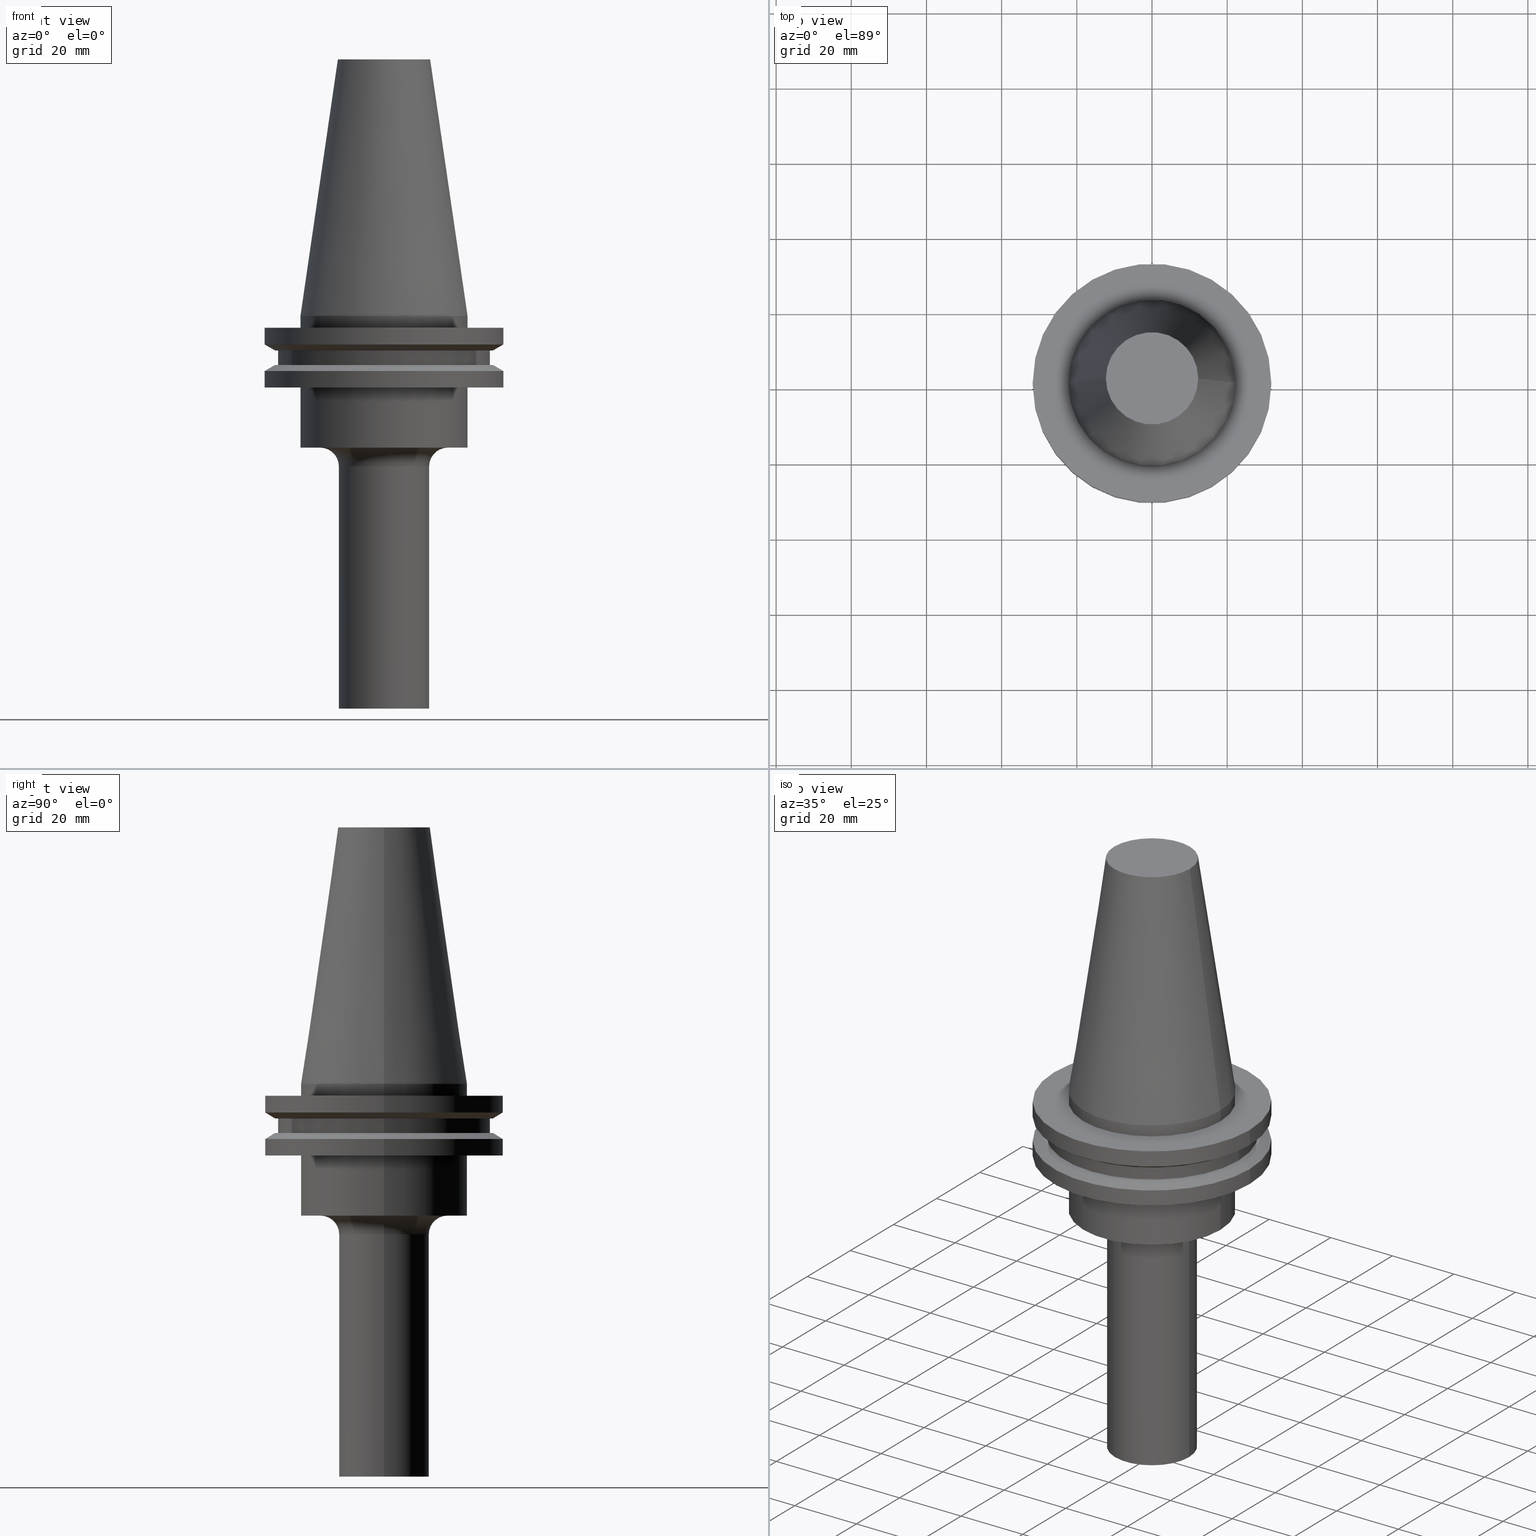
[diagram: canonical four-view strip — front | top / right | iso, engineering-drawing reading convention]
A machine part, canonical four-view strip (front | top / right | iso — engineering-drawing reading convention). The complete STEP part file that produces these views, byte-faithful:
ISO-10303-21;
HEADER;
FILE_DESCRIPTION (( 'STEP AP203' ),
    '1' );
FILE_NAME ('11_326_422.stp',
    '2022-03-07T22:03:20',
    ( '' ),
    ( '' ),
    'SwSTEP 2.0',
    'SolidWorks 2021',
    '' );
FILE_SCHEMA (( 'CONFIG_CONTROL_DESIGN' ));
ENDSEC;

DATA;
#1 = CARTESIAN_POINT ( 'NONE',  ( 22.22500000000000142, 0.000000000000000000, 68.25000000000000000 ) ) ;
#2 = ORIENTED_EDGE ( 'NONE', *, *, #511, .T. ) ;
#3 = AXIS2_PLACEMENT_3D ( 'NONE', #202, #434, #140 ) ;
#4 = CARTESIAN_POINT ( 'NONE',  ( -28.97919780457008088, 0.000000000000000000, -13.05499999999999794 ) ) ;
#5 = VECTOR ( 'NONE', #742, 1000.000000000000000 ) ;
#6 = CIRCLE ( 'NONE', #630, 17.00000000000000000 ) ;
#7 = ORIENTED_EDGE ( 'NONE', *, *, #646, .F. ) ;
#8 = DIRECTION ( 'NONE',  ( -1.000000000000000000, 0.000000000000000000, -0.000000000000000000 ) ) ;
#9 = DIRECTION ( 'NONE',  ( 1.000000000000000000, 0.000000000000000000, 0.000000000000000000 ) ) ;
#10 = ORIENTED_EDGE ( 'NONE', *, *, #542, .F. ) ;
#11 = ADVANCED_FACE ( 'NONE', ( #47 ), #728, .F. ) ;
#12 = CARTESIAN_POINT ( 'NONE',  ( 12.00000000000000000, 0.000000000000000000, -40.04999999999999716 ) ) ;
#13 = CYLINDRICAL_SURFACE ( 'NONE', #759, 12.00000000000000000 ) ;
#14 = EDGE_LOOP ( 'NONE', ( #296, #497, #472, #23 ) ) ;
#15 = CARTESIAN_POINT ( 'NONE',  ( 0.000000000000000000, 0.000000000000000000, 68.25000000000000000 ) ) ;
#16 = CIRCLE ( 'NONE', #144, 31.75000000000000000 ) ;
#17 = CARTESIAN_POINT ( 'NONE',  ( -31.75000000000000000, 3.888253587292846476E-15, 68.25000000000000000 ) ) ;
#18 = AXIS2_PLACEMENT_3D ( 'NONE', #373, #610, #722 ) ;
#19 = VERTEX_POINT ( 'NONE', #462 ) ;
#20 = CYLINDRICAL_SURFACE ( 'NONE', #481, 31.75000000000000000 ) ;
#21 = CARTESIAN_POINT ( 'NONE',  ( 0.000000000000000000, 28.17999999999999972, -13.05499999999999794 ) ) ;
#22 = EDGE_CURVE ( 'NONE', #432, #85, #226, .T. ) ;
#23 = ORIENTED_EDGE ( 'NONE', *, *, #128, .F. ) ;
#24 = DIRECTION ( 'NONE',  ( 1.000000000000000000, 0.000000000000000000, 0.000000000000000000 ) ) ;
#25 = CC_DESIGN_PERSON_AND_ORGANIZATION_ASSIGNMENT ( #116, #52, ( #57 ) ) ;
#26 = VERTEX_POINT ( 'NONE', #114 ) ;
#27 = LINE ( 'NONE', #623, #441 ) ;
#28 = CLOSED_SHELL ( 'NONE', ( #11, #212, #624, #609, #753, #613, #731, #582, #311, #187, #115, #589, #637, #289, #775, #248, #235, #154, #46, #120, #58, #655, #199, #464, #403, #496, #70 ) ) ;
#29 = CIRCLE ( 'NONE', #404, 31.74999999999999289 ) ;
#30 = ORIENTED_EDGE ( 'NONE', *, *, #669, .F. ) ;
#31 = CARTESIAN_POINT ( 'NONE',  ( -12.00000000000000000, 1.469576158976823947E-15, -104.5000000000000000 ) ) ;
#32 = DIRECTION ( 'NONE',  ( 1.000000000000000000, 0.000000000000000000, 0.000000000000000000 ) ) ;
#33 = ORIENTED_EDGE ( 'NONE', *, *, #283, .F. ) ;
#34 = DIRECTION ( 'NONE',  ( -0.000000000000000000, -0.000000000000000000, 1.000000000000000000 ) ) ;
#35 = EDGE_CURVE ( 'NONE', #186, #612, #143, .T. ) ;
#36 = DIRECTION ( 'NONE',  ( 1.000000000000000000, 0.000000000000000000, 0.000000000000000000 ) ) ;
#37 = DIRECTION ( 'NONE',  ( 1.000000000000000000, 0.000000000000000000, 0.000000000000000000 ) ) ;
#38 = LINE ( 'NONE', #285, #692 ) ;
#39 = ORIENTED_EDGE ( 'NONE', *, *, #371, .T. ) ;
#40 = AXIS2_PLACEMENT_3D ( 'NONE', #320, #561, #24 ) ;
#41 = AXIS2_PLACEMENT_3D ( 'NONE', #620, #246, #368 ) ;
#42 = PERSON ( 'UNSPECIFIED', 'UNSPECIFIED', 'UNSPECIFIED', ('UNSPECIFIED'), ('UNSPECIFIED'), ('UNSPECIFIED') ) ;
#43 = EDGE_LOOP ( 'NONE', ( #274, #622 ) ) ;
#44 = COORDINATED_UNIVERSAL_TIME_OFFSET ( 6, 0, .BEHIND. ) ;
#45 = CARTESIAN_POINT ( 'NONE',  ( 0.000000000000000000, 0.000000000000000000, 68.25000000000000000 ) ) ;
#46 = ADVANCED_FACE ( 'NONE', ( #459 ), #54, .T. ) ;
#47 = FACE_OUTER_BOUND ( 'NONE', #305, .T. ) ;
#48 = CALENDAR_DATE ( 2022, 7, 3 ) ;
#49 = LINE ( 'NONE', #117, #107 ) ;
#50 = ORIENTED_EDGE ( 'NONE', *, *, #358, .T. ) ;
#51 = CC_DESIGN_DATE_AND_TIME_ASSIGNMENT ( #349, #584, ( #761 ) ) ;
#52 = PERSON_AND_ORGANIZATION_ROLE ( 'creator' ) ;
#53 = LINE ( 'NONE', #176, #405 ) ;
#54 = CYLINDRICAL_SURFACE ( 'NONE', #130, 28.17999999999999972 ) ;
#55 = CIRCLE ( 'NONE', #220, 31.75000000000000000 ) ;
#56 = APPROVAL_DATE_TIME ( #173, #362 ) ;
#57 = PRODUCT_DEFINITION_FORMATION_WITH_SPECIFIED_SOURCE ( 'ANY', '', #198, .NOT_KNOWN. ) ;
#58 = ADVANCED_FACE ( 'NONE', ( #291 ), #591, .T. ) ;
#59 = CC_DESIGN_SECURITY_CLASSIFICATION ( #761, ( #57 ) ) ;
#60 = CYLINDRICAL_SURFACE ( 'NONE', #554, 22.22500000000000142 ) ;
#61 = FACE_BOUND ( 'NONE', #482, .T. ) ;
#62 = ORIENTED_EDGE ( 'NONE', *, *, #222, .F. ) ;
#63 = DATE_AND_TIME ( #640, #720 ) ;
#64 = CARTESIAN_POINT ( 'NONE',  ( 0.000000000000000000, 0.000000000000000000, -104.5000000000000000 ) ) ;
#65 = ORIENTED_EDGE ( 'NONE', *, *, #104, .T. ) ;
#66 = DIRECTION ( 'NONE',  ( -0.000000000000000000, -0.000000000000000000, 1.000000000000000000 ) ) ;
#67 = ORIENTED_EDGE ( 'NONE', *, *, #95, .F. ) ;
#68 = DIRECTION ( 'NONE',  ( 1.000000000000000000, 0.000000000000000000, 0.000000000000000000 ) ) ;
#69 = ORGANIZATION ( 'UNSPECIFIED', 'UNSPECIFIED', '' ) ;
#70 = ADVANCED_FACE ( 'NONE', ( #773 ), #757, .F. ) ;
#71 = ORIENTED_EDGE ( 'NONE', *, *, #706, .T. ) ;
#72 = DIRECTION ( 'NONE',  ( 1.000000000000000000, 0.000000000000000000, 0.000000000000000000 ) ) ;
#73 = DIRECTION ( 'NONE',  ( -1.000000000000000000, 0.000000000000000000, -0.000000000000000000 ) ) ;
#74 = EDGE_LOOP ( 'NONE', ( #71, #65, #435, #384 ) ) ;
#75 = EDGE_CURVE ( 'NONE', #26, #679, #166, .T. ) ;
#76 = DIRECTION ( 'NONE',  ( 1.000000000000000000, 0.000000000000000000, 0.000000000000000000 ) ) ;
#77 = LINE ( 'NONE', #17, #281 ) ;
#78 = EDGE_LOOP ( 'NONE', ( #388, #493, #736, #271 ) ) ;
#79 = CARTESIAN_POINT ( 'NONE',  ( 0.000000000000000000, 0.000000000000000000, -3.174999999999997158 ) ) ;
#80 = CIRCLE ( 'NONE', #181, 28.17999999999999972 ) ;
#81 = EDGE_CURVE ( 'NONE', #421, #244, #80, .T. ) ;
#82 = AXIS2_PLACEMENT_3D ( 'NONE', #219, #165, #686 ) ;
#83 = CARTESIAN_POINT ( 'NONE',  ( 0.000000000000000000, 0.000000000000000000, -3.174999999999997158 ) ) ;
#84 = CC_DESIGN_APPROVAL ( #468, ( #57 ) ) ;
#85 = VERTEX_POINT ( 'NONE', #136 ) ;
#86 = DIRECTION ( 'NONE',  ( 1.000000000000000000, 0.000000000000000000, 0.000000000000000000 ) ) ;
#87 = ORIENTED_EDGE ( 'NONE', *, *, #552, .T. ) ;
#88 = DIRECTION ( 'NONE',  ( -0.000000000000000000, -0.000000000000000000, 1.000000000000000000 ) ) ;
#89 = VERTEX_POINT ( 'NONE', #672 ) ;
#90 = DIRECTION ( 'NONE',  ( 1.000000000000000000, 0.000000000000000000, 0.000000000000000000 ) ) ;
#91 = DIRECTION ( 'NONE',  ( 1.000000000000000000, 0.000000000000000000, 0.000000000000000000 ) ) ;
#92 = AXIS2_PLACEMENT_3D ( 'NONE', #64, #185, #652 ) ;
#93 = VECTOR ( 'NONE', #201, 1000.000000000000000 ) ;
#94 = ORIENTED_EDGE ( 'NONE', *, *, #500, .T. ) ;
#95 = EDGE_CURVE ( 'NONE', #432, #566, #207, .T. ) ;
#96 = DIRECTION ( 'NONE',  ( -0.000000000000000000, -0.000000000000000000, 1.000000000000000000 ) ) ;
#97 = CARTESIAN_POINT ( 'NONE',  ( 31.75000000000000000, 0.000000000000000000, 68.25000000000000000 ) ) ;
#98 = ORIENTED_EDGE ( 'NONE', *, *, #104, .F. ) ;
#99 = DIRECTION ( 'NONE',  ( -0.000000000000000000, -0.000000000000000000, 1.000000000000000000 ) ) ;
#100 = CARTESIAN_POINT ( 'NONE',  ( -31.75000000000000000, 3.888253587292846476E-15, -7.605276606597335842 ) ) ;
#101 = EDGE_LOOP ( 'NONE', ( #7, #170 ) ) ;
#102 = COORDINATED_UNIVERSAL_TIME_OFFSET ( 6, 0, .BEHIND. ) ;
#103 = DIRECTION ( 'NONE',  ( 0.000000000000000000, 0.000000000000000000, -1.000000000000000000 ) ) ;
#104 = EDGE_CURVE ( 'NONE', #182, #19, #77, .T. ) ;
#105 = AXIS2_PLACEMENT_3D ( 'NONE', #258, #735, #615 ) ;
#106 = DIRECTION ( 'NONE',  ( 1.000000000000000000, 0.000000000000000000, 0.000000000000000000 ) ) ;
#107 = VECTOR ( 'NONE', #598, 1000.000000000000000 ) ;
#108 = AXIS2_PLACEMENT_3D ( 'NONE', #156, #626, #218 ) ;
#109 = DATE_TIME_ROLE ( 'creation_date' ) ;
#110 = DIRECTION ( 'NONE',  ( -0.000000000000000000, -0.000000000000000000, 1.000000000000000000 ) ) ;
#111 = CC_DESIGN_PERSON_AND_ORGANIZATION_ASSIGNMENT ( #460, #267, ( #198 ) ) ;
#112 = CARTESIAN_POINT ( 'NONE',  ( 0.000000000000000000, 0.000000000000000000, -40.04999999999999716 ) ) ;
#113 = LINE ( 'NONE', #420, #327 ) ;
#114 = CARTESIAN_POINT ( 'NONE',  ( 12.00000000000000000, 0.000000000000000000, -104.5000000000000000 ) ) ;
#115 = ADVANCED_FACE ( 'NONE', ( #309 ), #341, .T. ) ;
#116 = PERSON_AND_ORGANIZATION ( #42, #69 ) ;
#117 = CARTESIAN_POINT ( 'NONE',  ( -31.75000000000000000, 3.888253587292846476E-15, 68.25000000000000000 ) ) ;
#118 = DIRECTION ( 'NONE',  ( -0.000000000000000000, -0.000000000000000000, 1.000000000000000000 ) ) ;
#119 = AXIS2_PLACEMENT_3D ( 'NONE', #83, #133, #205 ) ;
#120 = ADVANCED_FACE ( 'NONE', ( #383, #374 ), #607, .F. ) ;
#121 = CALENDAR_DATE ( 2022, 7, 3 ) ;
#122 = CIRCLE ( 'NONE', #580, 31.74999999999999289 ) ;
#123 = DIRECTION ( 'NONE',  ( 0.000000000000000000, -0.000000000000000000, 1.000000000000000000 ) ) ;
#124 = ORIENTED_EDGE ( 'NONE', *, *, #706, .F. ) ;
#125 = CYLINDRICAL_SURFACE ( 'NONE', #470, 12.00000000000000000 ) ;
#126 = ORIENTED_EDGE ( 'NONE', *, *, #682, .T. ) ;
#127 = CARTESIAN_POINT ( 'NONE',  ( 0.000000000000000000, 0.000000000000000000, 68.25000000000000000 ) ) ;
#128 = EDGE_CURVE ( 'NONE', #238, #679, #440, .T. ) ;
#129 = ORIENTED_EDGE ( 'NONE', *, *, #485, .T. ) ;
#130 = AXIS2_PLACEMENT_3D ( 'NONE', #696, #407, #577 ) ;
#131 = AXIS2_PLACEMENT_3D ( 'NONE', #153, #225, #390 ) ;
#132 = CARTESIAN_POINT ( 'NONE',  ( 0.000000000000000000, 0.000000000000000000, 68.25000000000000000 ) ) ;
#133 = DIRECTION ( 'NONE',  ( -0.000000000000000000, -0.000000000000000000, 1.000000000000000000 ) ) ;
#134 = ORIENTED_EDGE ( 'NONE', *, *, #452, .F. ) ;
#135 = LINE ( 'NONE', #734, #93 ) ;
#136 = CARTESIAN_POINT ( 'NONE',  ( 31.75000000000000000, 0.000000000000000000, -14.65472339340266572 ) ) ;
#137 = EDGE_LOOP ( 'NONE', ( #538, #335, #666, #516 ) ) ;
#138 = EDGE_CURVE ( 'NONE', #254, #397, #718, .T. ) ;
#139 = DIRECTION ( 'NONE',  ( 1.000000000000000000, 0.000000000000000000, 0.000000000000000000 ) ) ;
#140 = DIRECTION ( 'NONE',  ( -1.000000000000000000, 0.000000000000000000, 0.000000000000000000 ) ) ;
#141 = ORIENTED_EDGE ( 'NONE', *, *, #474, .T. ) ;
#142 = FACE_OUTER_BOUND ( 'NONE', #74, .T. ) ;
#143 = CIRCLE ( 'NONE', #315, 12.27178102086201150 ) ;
#144 = AXIS2_PLACEMENT_3D ( 'NONE', #213, #273, #632 ) ;
#145 = CARTESIAN_POINT ( 'NONE',  ( 0.000000000000000000, 0.000000000000000000, 0.000000000000000000 ) ) ;
#146 = AXIS2_PLACEMENT_3D ( 'NONE', #132, #256, #662 ) ;
#147 = CC_DESIGN_APPROVAL ( #259, ( #761 ) ) ;
#148 = EDGE_LOOP ( 'NONE', ( #409, #633, #765, #763 ) ) ;
#149 = DIRECTION ( 'NONE',  ( 0.000000000000000000, 0.000000000000000000, 1.000000000000000000 ) ) ;
#150 = DIRECTION ( 'NONE',  ( 1.000000000000000000, 0.000000000000000000, 0.000000000000000000 ) ) ;
#151 = VERTEX_POINT ( 'NONE', #730 ) ;
#152 = DIRECTION ( 'NONE',  ( 1.000000000000000000, 0.000000000000000000, 0.000000000000000000 ) ) ;
#153 = CARTESIAN_POINT ( 'NONE',  ( 0.000000000000000000, 0.000000000000000000, 68.25000000000000000 ) ) ;
#154 = ADVANCED_FACE ( 'NONE', ( #558, #549 ), #438, .F. ) ;
#155 = ORIENTED_EDGE ( 'NONE', *, *, #740, .F. ) ;
#156 = CARTESIAN_POINT ( 'NONE',  ( 0.000000000000000000, 0.000000000000000000, -9.205000000000005400 ) ) ;
#157 = LINE ( 'NONE', #97, #703 ) ;
#158 = AXIS2_PLACEMENT_3D ( 'NONE', #473, #359, #476 ) ;
#159 = VERTEX_POINT ( 'NONE', #499 ) ;
#160 = FACE_BOUND ( 'NONE', #223, .T. ) ;
#161 = FACE_OUTER_BOUND ( 'NONE', #758, .T. ) ;
#162 = EDGE_LOOP ( 'NONE', ( #501, #310 ) ) ;
#163 = EDGE_CURVE ( 'NONE', #612, #186, #316, .T. ) ;
#164 = DIRECTION ( 'NONE',  ( -0.000000000000000000, -0.000000000000000000, 1.000000000000000000 ) ) ;
#165 = DIRECTION ( 'NONE',  ( -0.000000000000000000, -0.000000000000000000, 1.000000000000000000 ) ) ;
#166 = LINE ( 'NONE', #583, #565 ) ;
#167 = EDGE_CURVE ( 'NONE', #367, #326, #579, .T. ) ;
#168 = DIRECTION ( 'NONE',  ( -0.000000000000000000, -0.000000000000000000, 1.000000000000000000 ) ) ;
#169 = CIRCLE ( 'NONE', #663, 28.17999999999999972 ) ;
#170 = ORIENTED_EDGE ( 'NONE', *, *, #511, .F. ) ;
#171 = AXIS2_PLACEMENT_3D ( 'NONE', #376, #204, #494 ) ;
#172 = APPROVAL_PERSON_ORGANIZATION ( #533, #259, #179 ) ;
#173 = DATE_AND_TIME ( #121, #292 ) ;
#174 = CARTESIAN_POINT ( 'NONE',  ( 0.000000000000000000, 0.000000000000000000, -3.174999999999997158 ) ) ;
#175 = ORIENTED_EDGE ( 'NONE', *, *, #426, .T. ) ;
#176 = CARTESIAN_POINT ( 'NONE',  ( -28.17999999999999972, 3.451054679997241634E-15, 68.25000000000000000 ) ) ;
#177 = EDGE_CURVE ( 'NONE', #527, #372, #769, .T. ) ;
#178 = DIRECTION ( 'NONE',  ( 0.000000000000000000, 0.000000000000000000, -1.000000000000000000 ) ) ;
#179 = APPROVAL_ROLE ( '' ) ;
#180 = DIRECTION ( 'NONE',  ( 1.000000000000000000, 0.000000000000000000, 0.000000000000000000 ) ) ;
#181 = AXIS2_PLACEMENT_3D ( 'NONE', #253, #611, #738 ) ;
#182 = VERTEX_POINT ( 'NONE', #265 ) ;
#183 = APPROVAL_STATUS ( 'not_yet_approved' ) ;
#184 = AXIS2_PLACEMENT_3D ( 'NONE', #15, #483, #139 ) ;
#185 = DIRECTION ( 'NONE',  ( -0.000000000000000000, -0.000000000000000000, 1.000000000000000000 ) ) ;
#186 = VERTEX_POINT ( 'NONE', #197 ) ;
#187 = ADVANCED_FACE ( 'NONE', ( #503 ), #480, .T. ) ;
#188 = FACE_OUTER_BOUND ( 'NONE', #137, .T. ) ;
#189 = ORIENTED_EDGE ( 'NONE', *, *, #299, .T. ) ;
#190 = DIRECTION ( 'NONE',  ( -0.000000000000000000, -0.000000000000000000, 1.000000000000000000 ) ) ;
#191 = EDGE_CURVE ( 'NONE', #326, #367, #641, .T. ) ;
#192 = FACE_OUTER_BOUND ( 'NONE', #739, .T. ) ;
#193 = EDGE_LOOP ( 'NONE', ( #10, #687, #50, #608 ) ) ;
#194 = VECTOR ( 'NONE', #689, 999.9999999999998863 ) ;
#195 = FACE_OUTER_BOUND ( 'NONE', #625, .T. ) ;
#196 = AXIS2_PLACEMENT_3D ( 'NONE', #308, #737, #548 ) ;
#197 = CARTESIAN_POINT ( 'NONE',  ( 12.27178102086201150, 2.112318622904291439E-15, 68.25000000000000000 ) ) ;
#198 = PRODUCT ( '11_326_422', '11_326_422', '', ( #279 ) ) ;
#199 = ADVANCED_FACE ( 'NONE', ( #61, #192 ), #425, .F. ) ;
#200 = ORIENTED_EDGE ( 'NONE', *, *, #576, .T. ) ;
#201 = DIRECTION ( 'NONE',  ( -0.8660254037844389297, 1.060575238724907285E-16, 0.4999999999999995004 ) ) ;
#202 = CARTESIAN_POINT ( 'NONE',  ( 0.000000000000000000, 0.000000000000000000, 0.000000000000000000 ) ) ;
#203 = ORIENTED_EDGE ( 'NONE', *, *, #163, .T. ) ;
#204 = DIRECTION ( 'NONE',  ( 0.000000000000000000, -0.000000000000000000, 1.000000000000000000 ) ) ;
#205 = DIRECTION ( 'NONE',  ( 1.000000000000000000, 0.000000000000000000, 0.000000000000000000 ) ) ;
#206 = ORIENTED_EDGE ( 'NONE', *, *, #167, .T. ) ;
#207 = CIRCLE ( 'NONE', #616, 28.97919780457008088 ) ;
#208 = DIRECTION ( 'NONE',  ( 1.000000000000000000, 0.000000000000000000, 0.000000000000000000 ) ) ;
#209 = CARTESIAN_POINT ( 'NONE',  ( 0.000000000000000000, 0.000000000000000000, -35.04999999999999716 ) ) ;
#210 = CIRCLE ( 'NONE', #41, 17.00000000000000000 ) ;
#211 = ORIENTED_EDGE ( 'NONE', *, *, #138, .F. ) ;
#212 = ADVANCED_FACE ( 'NONE', ( #431 ), #13, .T. ) ;
#213 = CARTESIAN_POINT ( 'NONE',  ( 0.000000000000000000, 0.000000000000000000, -7.605276606597335842 ) ) ;
#214 = EDGE_LOOP ( 'NONE', ( #535, #314 ) ) ;
#215 = CARTESIAN_POINT ( 'NONE',  ( 28.17999999999999972, 0.000000000000000000, -9.204999999999991189 ) ) ;
#216 = DIRECTION ( 'NONE',  ( 0.000000000000000000, 0.000000000000000000, -1.000000000000000000 ) ) ;
#217 = ORIENTED_EDGE ( 'NONE', *, *, #22, .T. ) ;
#218 = DIRECTION ( 'NONE',  ( 1.000000000000000000, 0.000000000000000000, 0.000000000000000000 ) ) ;
#219 = CARTESIAN_POINT ( 'NONE',  ( 0.000000000000000000, 0.000000000000000000, -9.204999999999991189 ) ) ;
#220 = AXIS2_PLACEMENT_3D ( 'NONE', #656, #227, #401 ) ;
#221 = CONICAL_SURFACE ( 'NONE', #444, 31.75000000000000000, 1.047197551196597853 ) ;
#222 = EDGE_CURVE ( 'NONE', #612, #367, #756, .T. ) ;
#223 = EDGE_LOOP ( 'NONE', ( #562, #418 ) ) ;
#224 = CARTESIAN_POINT ( 'NONE',  ( 31.75000000000000000, 0.000000000000000000, -3.174999999999997158 ) ) ;
#225 = DIRECTION ( 'NONE',  ( -0.000000000000000000, -0.000000000000000000, 1.000000000000000000 ) ) ;
#226 = LINE ( 'NONE', #588, #230 ) ;
#227 = DIRECTION ( 'NONE',  ( -0.000000000000000000, -0.000000000000000000, 1.000000000000000000 ) ) ;
#228 = ORIENTED_EDGE ( 'NONE', *, *, #371, .F. ) ;
#229 = DIRECTION ( 'NONE',  ( 1.000000000000000000, 0.000000000000000000, 0.000000000000000000 ) ) ;
#230 = VECTOR ( 'NONE', #702, 1000.000000000000000 ) ;
#231 = CIRCLE ( 'NONE', #82, 28.17999999999999972 ) ;
#232 = ORIENTED_EDGE ( 'NONE', *, *, #95, .T. ) ;
#233 = CIRCLE ( 'NONE', #555, 28.17999999999999972 ) ;
#234 = CARTESIAN_POINT ( 'NONE',  ( 0.000000000000000000, 0.000000000000000000, 68.25000000000000000 ) ) ;
#235 = ADVANCED_FACE ( 'NONE', ( #161 ), #743, .T. ) ;
#236 = ORIENTED_EDGE ( 'NONE', *, *, #690, .T. ) ;
#237 = DIRECTION ( 'NONE',  ( -0.000000000000000000, -0.000000000000000000, 1.000000000000000000 ) ) ;
#238 = VERTEX_POINT ( 'NONE', #762 ) ;
#239 = APPROVAL_DATE_TIME ( #63, #468 ) ;
#240 = CARTESIAN_POINT ( 'NONE',  ( 28.97919780457007732, 0.000000000000000000, -9.205000000000005400 ) ) ;
#241 = AXIS2_PLACEMENT_3D ( 'NONE', #377, #495, #250 ) ;
#242 = EDGE_CURVE ( 'NONE', #260, #715, #231, .T. ) ;
#243 = AXIS2_PLACEMENT_3D ( 'NONE', #355, #594, #725 ) ;
#244 = VERTEX_POINT ( 'NONE', #635 ) ;
#245 = CIRCLE ( 'NONE', #342, 12.00000000000000000 ) ;
#246 = DIRECTION ( 'NONE',  ( -0.000000000000000000, -0.000000000000000000, 1.000000000000000000 ) ) ;
#247 = VERTEX_POINT ( 'NONE', #100 ) ;
#248 = ADVANCED_FACE ( 'NONE', ( #337 ), #451, .T. ) ;
#249 = CARTESIAN_POINT ( 'NONE',  ( 31.75000000000000000, 0.000000000000000000, -7.605276606597335842 ) ) ;
#250 = DIRECTION ( 'NONE',  ( 1.000000000000000000, 0.000000000000000000, 0.000000000000000000 ) ) ;
#251 = ORIENTED_EDGE ( 'NONE', *, *, #191, .T. ) ;
#252 = CARTESIAN_POINT ( 'NONE',  ( 0.000000000000000000, 0.000000000000000000, -40.04999999999999716 ) ) ;
#253 = CARTESIAN_POINT ( 'NONE',  ( 0.000000000000000000, 0.000000000000000000, -13.05499999999999794 ) ) ;
#254 = VERTEX_POINT ( 'NONE', #581 ) ;
#255 = AXIS2_PLACEMENT_3D ( 'NONE', #676, #545, #9 ) ;
#256 = DIRECTION ( 'NONE',  ( -0.000000000000000000, -0.000000000000000000, 1.000000000000000000 ) ) ;
#257 = CIRCLE ( 'NONE', #428, 31.75000000000000000 ) ;
#258 = CARTESIAN_POINT ( 'NONE',  ( 0.000000000000000000, 0.000000000000000000, -40.04999999999999716 ) ) ;
#259 = APPROVAL ( #522, 'UNSPECIFIED' ) ;
#260 = VERTEX_POINT ( 'NONE', #508 ) ;
#261 = CARTESIAN_POINT ( 'NONE',  ( -12.27178102086201150, 0.000000000000000000, 68.25000000000000000 ) ) ;
#262 = DIRECTION ( 'NONE',  ( 0.000000000000000000, 0.000000000000000000, -1.000000000000000000 ) ) ;
#263 = ORIENTED_EDGE ( 'NONE', *, *, #277, .T. ) ;
#264 = CARTESIAN_POINT ( 'NONE',  ( 0.000000000000000000, 0.000000000000000000, -13.05499999999999794 ) ) ;
#265 = CARTESIAN_POINT ( 'NONE',  ( -31.74999999999999289, 3.888253587292845687E-15, -19.04999999999999716 ) ) ;
#266 = EDGE_LOOP ( 'NONE', ( #175, #189, #429, #726 ) ) ;
#267 = PERSON_AND_ORGANIZATION_ROLE ( 'design_owner' ) ;
#268 = CIRCLE ( 'NONE', #505, 22.22500000000000142 ) ;
#269 = APPROVAL_PERSON_ORGANIZATION ( #578, #362, #410 ) ;
#270 = CARTESIAN_POINT ( 'NONE',  ( -22.22500000000000142, 0.000000000000000000, 0.000000000000000000 ) ) ;
#271 = ORIENTED_EDGE ( 'NONE', *, *, #382, .F. ) ;
#272 = CARTESIAN_POINT ( 'NONE',  ( 0.000000000000000000, 0.000000000000000000, -19.04999999999999716 ) ) ;
#273 = DIRECTION ( 'NONE',  ( -0.000000000000000000, -0.000000000000000000, 1.000000000000000000 ) ) ;
#274 = ORIENTED_EDGE ( 'NONE', *, *, #426, .F. ) ;
#275 = CARTESIAN_POINT ( 'NONE',  ( -22.22500000000000142, 2.721777511104992849E-15, 68.25000000000000000 ) ) ;
#276 = FACE_OUTER_BOUND ( 'NONE', #78, .T. ) ;
#277 = EDGE_CURVE ( 'NONE', #330, #89, #268, .T. ) ;
#278 = DIRECTION ( 'NONE',  ( 1.000000000000000000, 0.000000000000000000, 0.000000000000000000 ) ) ;
#279 = MECHANICAL_CONTEXT ( 'NONE', #334, 'mechanical' ) ;
#280 = DIRECTION ( 'NONE',  ( -0.000000000000000000, -0.000000000000000000, 1.000000000000000000 ) ) ;
#281 = VECTOR ( 'NONE', #313, 1000.000000000000000 ) ;
#282 = AXIS2_PLACEMENT_3D ( 'NONE', #287, #110, #345 ) ;
#283 = EDGE_CURVE ( 'NONE', #247, #636, #16, .T. ) ;
#284 = DIRECTION ( 'NONE',  ( -0.000000000000000000, -0.000000000000000000, 1.000000000000000000 ) ) ;
#285 = CARTESIAN_POINT ( 'NONE',  ( -12.00000000000000000, 1.469576158976823947E-15, 0.000000000000000000 ) ) ;
#286 = ORIENTED_EDGE ( 'NONE', *, *, #485, .F. ) ;
#287 = CARTESIAN_POINT ( 'NONE',  ( 0.000000000000000000, 0.000000000000000000, -9.205000000000005400 ) ) ;
#288 = CARTESIAN_POINT ( 'NONE',  ( 0.000000000000000000, 0.000000000000000000, 68.25000000000000000 ) ) ;
#289 = ADVANCED_FACE ( 'NONE', ( #683 ), #627, .T. ) ;
#290 = DIRECTION ( 'NONE',  ( -0.000000000000000000, -0.000000000000000000, 1.000000000000000000 ) ) ;
#291 = FACE_OUTER_BOUND ( 'NONE', #644, .T. ) ;
#292 = LOCAL_TIME ( 16, 3, 20.00000000000000000, #777 ) ;
#293 = PERSON_AND_ORGANIZATION ( #42, #69 ) ;
#294 = PLANE ( 'NONE',  #541 ) ;
#295 = DIRECTION ( 'NONE',  ( 1.000000000000000000, 0.000000000000000000, 0.000000000000000000 ) ) ;
#296 = ORIENTED_EDGE ( 'NONE', *, *, #299, .F. ) ;
#297 = CALENDAR_DATE ( 2022, 7, 3 ) ;
#298 = CARTESIAN_POINT ( 'NONE',  ( 0.000000000000000000, 0.000000000000000000, -14.65472339340266572 ) ) ;
#299 = EDGE_CURVE ( 'NONE', #776, #238, #38, .T. ) ;
#300 = ORIENTED_EDGE ( 'NONE', *, *, #634, .T. ) ;
#301 = FACE_OUTER_BOUND ( 'NONE', #214, .T. ) ;
#302 = PRODUCT_RELATED_PRODUCT_CATEGORY ( 'detail', '', ( #198 ) ) ;
#303 = AXIS2_PLACEMENT_3D ( 'NONE', #752, #216, #396 ) ;
#304 = VECTOR ( 'NONE', #458, 999.9999999999998863 ) ;
#305 = EDGE_LOOP ( 'NONE', ( #661, #556, #322, #600 ) ) ;
#306 = DIRECTION ( 'NONE',  ( 1.000000000000000000, 0.000000000000000000, 0.000000000000000000 ) ) ;
#307 = ORIENTED_EDGE ( 'NONE', *, *, #382, .T. ) ;
#308 = CARTESIAN_POINT ( 'NONE',  ( 0.000000000000000000, 0.000000000000000000, -3.174999999999997158 ) ) ;
#309 = FACE_OUTER_BOUND ( 'NONE', #560, .T. ) ;
#310 = ORIENTED_EDGE ( 'NONE', *, *, #242, .T. ) ;
#311 = ADVANCED_FACE ( 'NONE', ( #276 ), #329, .T. ) ;
#312 = PLANE ( 'NONE',  #770 ) ;
#313 = DIRECTION ( 'NONE',  ( -0.000000000000000000, -0.000000000000000000, 1.000000000000000000 ) ) ;
#314 = ORIENTED_EDGE ( 'NONE', *, *, #277, .F. ) ;
#315 = AXIS2_PLACEMENT_3D ( 'NONE', #288, #351, #278 ) ;
#316 = CIRCLE ( 'NONE', #255, 12.27178102086201150 ) ;
#317 = CYLINDRICAL_SURFACE ( 'NONE', #146, 28.17999999999999972 ) ;
#318 = CARTESIAN_POINT ( 'NONE',  ( 0.000000000000000000, 0.000000000000000000, -13.05499999999999794 ) ) ;
#319 = VERTEX_POINT ( 'NONE', #698 ) ;
#320 = CARTESIAN_POINT ( 'NONE',  ( 0.000000000000000000, 0.000000000000000000, -19.04999999999999716 ) ) ;
#321 = EDGE_CURVE ( 'NONE', #347, #85, #157, .T. ) ;
#322 = ORIENTED_EDGE ( 'NONE', *, *, #128, .T. ) ;
#323 = APPLICATION_PROTOCOL_DEFINITION ( 'international standard', 'config_control_design', 1994, #334 ) ;
#324 = LINE ( 'NONE', #386, #5 ) ;
#325 = EDGE_CURVE ( 'NONE', #186, #326, #461, .T. ) ;
#326 = VERTEX_POINT ( 'NONE', #519 ) ;
#327 = VECTOR ( 'NONE', #592, 1000.000000000000000 ) ;
#328 = AXIS2_PLACEMENT_3D ( 'NONE', #264, #572, #208 ) ;
#329 = CYLINDRICAL_SURFACE ( 'NONE', #617, 22.22500000000000142 ) ;
#330 = VERTEX_POINT ( 'NONE', #394 ) ;
#331 = EDGE_CURVE ( 'NONE', #89, #330, #402, .T. ) ;
#332 = FACE_OUTER_BOUND ( 'NONE', #684, .T. ) ;
#333 = CARTESIAN_POINT ( 'NONE',  ( 0.000000000000000000, 0.000000000000000000, -35.04999999999999716 ) ) ;
#334 = APPLICATION_CONTEXT ( 'configuration controlled 3d designs of mechanical parts and assemblies' ) ;
#335 = ORIENTED_EDGE ( 'NONE', *, *, #542, .T. ) ;
#336 = DIRECTION ( 'NONE',  ( 1.000000000000000000, 0.000000000000000000, 0.000000000000000000 ) ) ;
#337 = FACE_OUTER_BOUND ( 'NONE', #439, .T. ) ;
#338 = ORIENTED_EDGE ( 'NONE', *, *, #35, .T. ) ;
#339 = COORDINATED_UNIVERSAL_TIME_OFFSET ( 6, 0, .BEHIND. ) ;
#340 = CARTESIAN_POINT ( 'NONE',  ( 31.74999999999999289, 0.000000000000000000, -19.04999999999999716 ) ) ;
#341 = CONICAL_SURFACE ( 'NONE', #3, 22.22500000000000142, 0.1448138465474119174 ) ;
#342 = AXIS2_PLACEMENT_3D ( 'NONE', #741, #34, #336 ) ;
#343 = ORIENTED_EDGE ( 'NONE', *, *, #81, .F. ) ;
#344 = APPROVAL_DATE_TIME ( #528, #259 ) ;
#345 = DIRECTION ( 'NONE',  ( 1.000000000000000000, 0.000000000000000000, 0.000000000000000000 ) ) ;
#346 = EDGE_CURVE ( 'NONE', #513, #679, #365, .T. ) ;
#347 = VERTEX_POINT ( 'NONE', #340 ) ;
#348 = EDGE_LOOP ( 'NONE', ( #504, #673, #251, #62 ) ) ;
#349 = DATE_AND_TIME ( #297, #395 ) ;
#350 = CARTESIAN_POINT ( 'NONE',  ( 31.75000000000000000, 0.000000000000000000, 68.25000000000000000 ) ) ;
#351 = DIRECTION ( 'NONE',  ( -0.000000000000000000, -0.000000000000000000, 1.000000000000000000 ) ) ;
#352 = PERSON_AND_ORGANIZATION_ROLE ( 'design_supplier' ) ;
#353 = CARTESIAN_POINT ( 'NONE',  ( -28.17999999999999972, 3.451054679997241634E-15, -13.05499999999999794 ) ) ;
#354 = VECTOR ( 'NONE', #645, 1000.000000000000000 ) ;
#355 = CARTESIAN_POINT ( 'NONE',  ( 0.000000000000000000, 0.000000000000000000, 0.000000000000000000 ) ) ;
#356 = VECTOR ( 'NONE', #557, 1000.000000000000000 ) ;
#357 = PERSON_AND_ORGANIZATION ( #42, #69 ) ;
#358 = EDGE_CURVE ( 'NONE', #244, #715, #324, .T. ) ;
#359 = DIRECTION ( 'NONE',  ( 1.224646799147353207E-16, 1.000000000000000000, 0.000000000000000000 ) ) ;
#360 = ORIENTED_EDGE ( 'NONE', *, *, #525, .T. ) ;
#361 = DIRECTION ( 'NONE',  ( 0.8660254037844389297, 0.000000000000000000, 0.4999999999999995004 ) ) ;
#362 = APPROVAL ( #183, 'UNSPECIFIED' ) ;
#363 = EDGE_LOOP ( 'NONE', ( #446, #550, #654, #484 ) ) ;
#364 = FACE_OUTER_BOUND ( 'NONE', #363, .T. ) ;
#365 = CIRCLE ( 'NONE', #629, 4.999999999999997335 ) ;
#366 = AXIS2_PLACEMENT_3D ( 'NONE', #433, #667, #68 ) ;
#367 = VERTEX_POINT ( 'NONE', #445 ) ;
#368 = DIRECTION ( 'NONE',  ( 1.000000000000000000, 0.000000000000000000, 0.000000000000000000 ) ) ;
#369 = DIRECTION ( 'NONE',  ( 0.000000000000000000, 0.000000000000000000, -1.000000000000000000 ) ) ;
#370 = DESIGN_CONTEXT ( 'detailed design', #680, 'design' ) ;
#371 = EDGE_CURVE ( 'NONE', #254, #326, #27, .T. ) ;
#372 = VERTEX_POINT ( 'NONE', #564 ) ;
#373 = CARTESIAN_POINT ( 'NONE',  ( 0.000000000000000000, 0.000000000000000000, -19.04999999999999716 ) ) ;
#374 = FACE_BOUND ( 'NONE', #162, .T. ) ;
#375 = ORIENTED_EDGE ( 'NONE', *, *, #167, .F. ) ;
#376 = CARTESIAN_POINT ( 'NONE',  ( 0.000000000000000000, 22.22500000000000142, -35.04999999999999716 ) ) ;
#377 = CARTESIAN_POINT ( 'NONE',  ( 0.000000000000000000, 28.97919780457007732, -9.204999999999996518 ) ) ;
#378 = ORIENTED_EDGE ( 'NONE', *, *, #690, .F. ) ;
#379 = AXIS2_PLACEMENT_3D ( 'NONE', #664, #369, #73 ) ;
#380 = CYLINDRICAL_SURFACE ( 'NONE', #184, 31.75000000000000000 ) ;
#381 = CIRCLE ( 'NONE', #568, 22.22500000000000142 ) ;
#382 = EDGE_CURVE ( 'NONE', #89, #527, #713, .T. ) ;
#383 = FACE_OUTER_BOUND ( 'NONE', #101, .T. ) ;
#384 = ORIENTED_EDGE ( 'NONE', *, *, #321, .F. ) ;
#385 = DIRECTION ( 'NONE',  ( 1.000000000000000000, 0.000000000000000000, 0.000000000000000000 ) ) ;
#386 = CARTESIAN_POINT ( 'NONE',  ( 28.17999999999999972, 0.000000000000000000, 68.25000000000000000 ) ) ;
#387 = EDGE_CURVE ( 'NONE', #247, #159, #49, .T. ) ;
#388 = ORIENTED_EDGE ( 'NONE', *, *, #331, .T. ) ;
#389 = LINE ( 'NONE', #275, #719 ) ;
#390 = DIRECTION ( 'NONE',  ( 1.000000000000000000, 0.000000000000000000, 0.000000000000000000 ) ) ;
#391 = ORIENTED_EDGE ( 'NONE', *, *, #163, .F. ) ;
#392 = CIRCLE ( 'NONE', #92, 12.00000000000000000 ) ;
#393 = LOCAL_TIME ( 16, 3, 20.00000000000000000, #44 ) ;
#394 = CARTESIAN_POINT ( 'NONE',  ( -22.22500000000000142, 2.721777511104992849E-15, -35.04999999999999716 ) ) ;
#395 = LOCAL_TIME ( 16, 3, 20.00000000000000000, #590 ) ;
#396 = DIRECTION ( 'NONE',  ( -1.000000000000000000, 0.000000000000000000, 0.000000000000000000 ) ) ;
#397 = VERTEX_POINT ( 'NONE', #772 ) ;
#398 =( NAMED_UNIT ( * ) SI_UNIT ( $, .STERADIAN. ) SOLID_ANGLE_UNIT ( ) );
#399 = DIRECTION ( 'NONE',  ( -0.000000000000000000, -0.000000000000000000, 1.000000000000000000 ) ) ;
#400 = CARTESIAN_POINT ( 'NONE',  ( 0.000000000000000000, 0.000000000000000000, -40.04999999999999716 ) ) ;
#401 = DIRECTION ( 'NONE',  ( 1.000000000000000000, 0.000000000000000000, 0.000000000000000000 ) ) ;
#402 = CIRCLE ( 'NONE', #677, 22.22500000000000142 ) ;
#403 = ADVANCED_FACE ( 'NONE', ( #717 ), #294, .F. ) ;
#404 = AXIS2_PLACEMENT_3D ( 'NONE', #649, #489, #306 ) ;
#405 = VECTOR ( 'NONE', #411, 1000.000000000000000 ) ;
#406 = LOCAL_TIME ( 16, 3, 20.00000000000000000, #102 ) ;
#407 = DIRECTION ( 'NONE',  ( -0.000000000000000000, -0.000000000000000000, 1.000000000000000000 ) ) ;
#408 = DIRECTION ( 'NONE',  ( 1.000000000000000000, 0.000000000000000000, 0.000000000000000000 ) ) ;
#409 = ORIENTED_EDGE ( 'NONE', *, *, #646, .T. ) ;
#410 = APPROVAL_ROLE ( '' ) ;
#411 = DIRECTION ( 'NONE',  ( -0.000000000000000000, -0.000000000000000000, 1.000000000000000000 ) ) ;
#412 = CARTESIAN_POINT ( 'NONE',  ( 0.000000000000000000, 0.000000000000000000, 0.000000000000000000 ) ) ;
#413 = EDGE_CURVE ( 'NONE', #488, #238, #456, .T. ) ;
#414 = SHAPE_DEFINITION_REPRESENTATION ( #748, #675 ) ;
#415 = CARTESIAN_POINT ( 'NONE',  ( 0.000000000000000000, 12.00000000000000000, -104.5000000000000000 ) ) ;
#416 = AXIS2_PLACEMENT_3D ( 'NONE', #400, #639, #106 ) ;
#417 = CIRCLE ( 'NONE', #282, 28.97919780457007732 ) ;
#418 = ORIENTED_EDGE ( 'NONE', *, *, #599, .T. ) ;
#419 = CC_DESIGN_PERSON_AND_ORGANIZATION_ASSIGNMENT ( #465, #352, ( #57 ) ) ;
#420 = CARTESIAN_POINT ( 'NONE',  ( -22.22500000000000142, 2.721777511104992849E-15, 68.25000000000000000 ) ) ;
#421 = VERTEX_POINT ( 'NONE', #353 ) ;
#422 = CYLINDRICAL_SURFACE ( 'NONE', #531, 31.75000000000000000 ) ;
#423 = ORIENTED_EDGE ( 'NONE', *, *, #552, .F. ) ;
#424 = CYLINDRICAL_SURFACE ( 'NONE', #366, 22.22500000000000142 ) ;
#425 = PLANE ( 'NONE',  #379 ) ;
#426 = EDGE_CURVE ( 'NONE', #26, #776, #392, .T. ) ;
#427 = AXIS2_PLACEMENT_3D ( 'NONE', #145, #621, #86 ) ;
#428 = AXIS2_PLACEMENT_3D ( 'NONE', #174, #290, #408 ) ;
#429 = ORIENTED_EDGE ( 'NONE', *, *, #682, .F. ) ;
#430 = CARTESIAN_POINT ( 'NONE',  ( 0.000000000000000000, 0.000000000000000000, 68.25000000000000000 ) ) ;
#431 = FACE_OUTER_BOUND ( 'NONE', #266, .T. ) ;
#432 = VERTEX_POINT ( 'NONE', #526 ) ;
#433 = CARTESIAN_POINT ( 'NONE',  ( 0.000000000000000000, 0.000000000000000000, 68.25000000000000000 ) ) ;
#434 = DIRECTION ( 'NONE',  ( 0.000000000000000000, 0.000000000000000000, -1.000000000000000000 ) ) ;
#435 = ORIENTED_EDGE ( 'NONE', *, *, #474, .F. ) ;
#436 = EDGE_CURVE ( 'NONE', #151, #636, #774, .T. ) ;
#437 = DIRECTION ( 'NONE',  ( 1.000000000000000000, 0.000000000000000000, 0.000000000000000000 ) ) ;
#438 = PLANE ( 'NONE',  #729 ) ;
#439 = EDGE_LOOP ( 'NONE', ( #98, #87, #619, #286 ) ) ;
#440 = CIRCLE ( 'NONE', #105, 12.00000000000000000 ) ;
#441 = VECTOR ( 'NONE', #88, 1000.000000000000000 ) ;
#442 = EDGE_CURVE ( 'NONE', #244, #421, #169, .T. ) ;
#443 = DIRECTION ( 'NONE',  ( 1.000000000000000000, 0.000000000000000000, 0.000000000000000000 ) ) ;
#444 = AXIS2_PLACEMENT_3D ( 'NONE', #755, #514, #631 ) ;
#445 = CARTESIAN_POINT ( 'NONE',  ( -22.22500000000000142, 0.000000000000000000, 0.000000000000000000 ) ) ;
#446 = ORIENTED_EDGE ( 'NONE', *, *, #520, .T. ) ;
#447 = DIRECTION ( 'NONE',  ( 1.000000000000000000, 0.000000000000000000, 0.000000000000000000 ) ) ;
#448 = DIRECTION ( 'NONE',  ( -0.000000000000000000, -0.000000000000000000, 1.000000000000000000 ) ) ;
#449 = ORIENTED_EDGE ( 'NONE', *, *, #660, .T. ) ;
#450 =( LENGTH_UNIT ( ) NAMED_UNIT ( * ) SI_UNIT ( .MILLI., .METRE. ) );
#451 = CYLINDRICAL_SURFACE ( 'NONE', #131, 31.75000000000000000 ) ;
#452 = EDGE_CURVE ( 'NONE', #330, #372, #113, .T. ) ;
#453 = ORIENTED_EDGE ( 'NONE', *, *, #559, .F. ) ;
#454 = AXIS2_PLACEMENT_3D ( 'NONE', #532, #284, #699 ) ;
#455 = CARTESIAN_POINT ( 'NONE',  ( 0.000000000000000000, 0.000000000000000000, -35.04999999999999716 ) ) ;
#456 = CIRCLE ( 'NONE', #158, 4.999999999999997335 ) ;
#457 = CIRCLE ( 'NONE', #693, 12.00000000000000000 ) ;
#458 = DIRECTION ( 'NONE',  ( -0.1443082272672999711, 0.000000000000000000, -0.9895327864921755756 ) ) ;
#459 = FACE_OUTER_BOUND ( 'NONE', #193, .T. ) ;
#460 = PERSON_AND_ORGANIZATION ( #42, #69 ) ;
#461 = LINE ( 'NONE', #512, #194 ) ;
#462 = CARTESIAN_POINT ( 'NONE',  ( -31.75000000000000000, 3.888253587292846476E-15, -14.65472339340266572 ) ) ;
#463 = EDGE_LOOP ( 'NONE', ( #750, #343 ) ) ;
#464 = ADVANCED_FACE ( 'NONE', ( #534 ), #60, .T. ) ;
#465 = PERSON_AND_ORGANIZATION ( #42, #69 ) ;
#466 = DIRECTION ( 'NONE',  ( -0.000000000000000000, -0.000000000000000000, 1.000000000000000000 ) ) ;
#467 = ORIENTED_EDGE ( 'NONE', *, *, #599, .F. ) ;
#468 = APPROVAL ( #478, 'UNSPECIFIED' ) ;
#469 = DIRECTION ( 'NONE',  ( -0.000000000000000000, -0.000000000000000000, 1.000000000000000000 ) ) ;
#470 = AXIS2_PLACEMENT_3D ( 'NONE', #643, #466, #229 ) ;
#471 = AXIS2_PLACEMENT_3D ( 'NONE', #724, #551, #76 ) ;
#472 = ORIENTED_EDGE ( 'NONE', *, *, #75, .T. ) ;
#473 = CARTESIAN_POINT ( 'NONE',  ( -17.00000000000000000, 2.081899558550500280E-15, -40.04999999999999716 ) ) ;
#474 = EDGE_CURVE ( 'NONE', #85, #19, #55, .T. ) ;
#475 = ORIENTED_EDGE ( 'NONE', *, *, #413, .F. ) ;
#476 = DIRECTION ( 'NONE',  ( -1.000000000000000000, 1.224646799147353454E-16, 0.000000000000000000 ) ) ;
#477 = EDGE_LOOP ( 'NONE', ( #378, #449, #39, #375 ) ) ;
#478 = APPROVAL_STATUS ( 'not_yet_approved' ) ;
#479 = CARTESIAN_POINT ( 'NONE',  ( -17.00000000000000000, 2.081899558550500280E-15, -35.04999999999999716 ) ) ;
#480 = CONICAL_SURFACE ( 'NONE', #602, 22.22500000000000142, 0.1448138465474119174 ) ;
#481 = AXIS2_PLACEMENT_3D ( 'NONE', #430, #190, #606 ) ;
#482 = EDGE_LOOP ( 'NONE', ( #211, #745 ) ) ;
#483 = DIRECTION ( 'NONE',  ( -0.000000000000000000, -0.000000000000000000, 1.000000000000000000 ) ) ;
#484 = ORIENTED_EDGE ( 'NONE', *, *, #500, .F. ) ;
#485 = EDGE_CURVE ( 'NONE', #19, #85, #653, .T. ) ;
#486 = PLANE ( 'NONE',  #171 ) ;
#487 = DIRECTION ( 'NONE',  ( -1.000000000000000000, 0.000000000000000000, -0.000000000000000000 ) ) ;
#488 = VERTEX_POINT ( 'NONE', #479 ) ;
#489 = DIRECTION ( 'NONE',  ( -0.000000000000000000, -0.000000000000000000, 1.000000000000000000 ) ) ;
#490 = CARTESIAN_POINT ( 'NONE',  ( 0.000000000000000000, 0.000000000000000000, 0.000000000000000000 ) ) ;
#491 = AXIS2_PLACEMENT_3D ( 'NONE', #298, #709, #537 ) ;
#492 = CIRCLE ( 'NONE', #18, 22.22500000000000142 ) ;
#493 = ORIENTED_EDGE ( 'NONE', *, *, #452, .T. ) ;
#494 = DIRECTION ( 'NONE',  ( 1.000000000000000000, 0.000000000000000000, 0.000000000000000000 ) ) ;
#495 = DIRECTION ( 'NONE',  ( 0.000000000000000000, -0.000000000000000000, 1.000000000000000000 ) ) ;
#496 = ADVANCED_FACE ( 'NONE', ( #764 ), #125, .T. ) ;
#497 = ORIENTED_EDGE ( 'NONE', *, *, #710, .T. ) ;
#498 = DIRECTION ( 'NONE',  ( -0.000000000000000000, -0.000000000000000000, 1.000000000000000000 ) ) ;
#499 = CARTESIAN_POINT ( 'NONE',  ( -31.75000000000000000, 3.888253587292846476E-15, -3.174999999999997158 ) ) ;
#500 = EDGE_CURVE ( 'NONE', #636, #768, #701, .T. ) ;
#501 = ORIENTED_EDGE ( 'NONE', *, *, #714, .T. ) ;
#502 = CARTESIAN_POINT ( 'NONE',  ( 0.000000000000000000, 0.000000000000000000, 0.000000000000000000 ) ) ;
#503 = FACE_OUTER_BOUND ( 'NONE', #348, .T. ) ;
#504 = ORIENTED_EDGE ( 'NONE', *, *, #35, .F. ) ;
#505 = AXIS2_PLACEMENT_3D ( 'NONE', #333, #448, #749 ) ;
#506 = CIRCLE ( 'NONE', #618, 31.75000000000000000 ) ;
#507 = DIRECTION ( 'NONE',  ( 1.000000000000000000, 0.000000000000000000, 0.000000000000000000 ) ) ;
#508 = CARTESIAN_POINT ( 'NONE',  ( -28.17999999999999972, 3.451054679997241634E-15, -9.204999999999991189 ) ) ;
#509 = EDGE_LOOP ( 'NONE', ( #543, #232 ) ) ;
#510 = CARTESIAN_POINT ( 'NONE',  ( 0.000000000000000000, 0.000000000000000000, -9.204999999999991189 ) ) ;
#511 = EDGE_CURVE ( 'NONE', #319, #151, #417, .T. ) ;
#512 = CARTESIAN_POINT ( 'NONE',  ( 22.22500000000000142, 2.721777511104992849E-15, 0.000000000000000000 ) ) ;
#513 = VERTEX_POINT ( 'NONE', #585 ) ;
#514 = DIRECTION ( 'NONE',  ( 0.000000000000000000, 0.000000000000000000, -1.000000000000000000 ) ) ;
#515 = CARTESIAN_POINT ( 'NONE',  ( 17.00000000000000000, 0.000000000000000000, -40.04999999999999716 ) ) ;
#516 = ORIENTED_EDGE ( 'NONE', *, *, #358, .F. ) ;
#517 = AXIS2_PLACEMENT_3D ( 'NONE', #575, #280, #91 ) ;
#518 = CIRCLE ( 'NONE', #196, 31.75000000000000000 ) ;
#519 = CARTESIAN_POINT ( 'NONE',  ( 22.22500000000000142, 2.721777511104992849E-15, 0.000000000000000000 ) ) ;
#520 = EDGE_CURVE ( 'NONE', #636, #247, #506, .T. ) ;
#521 = ORIENTED_EDGE ( 'NONE', *, *, #222, .T. ) ;
#522 = APPROVAL_STATUS ( 'not_yet_approved' ) ;
#523 = DIRECTION ( 'NONE',  ( 1.000000000000000000, 0.000000000000000000, 0.000000000000000000 ) ) ;
#524 = DIRECTION ( 'NONE',  ( -0.000000000000000000, -0.000000000000000000, 1.000000000000000000 ) ) ;
#525 = EDGE_CURVE ( 'NONE', #768, #159, #257, .T. ) ;
#526 = CARTESIAN_POINT ( 'NONE',  ( 28.97919780457008088, 3.718590885307660666E-15, -13.05499999999999794 ) ) ;
#527 = VERTEX_POINT ( 'NONE', #587 ) ;
#528 = DATE_AND_TIME ( #48, #406 ) ;
#529 = DIRECTION ( 'NONE',  ( 1.000000000000000000, 0.000000000000000000, 0.000000000000000000 ) ) ;
#530 = VECTOR ( 'NONE', #361, 1000.000000000000000 ) ;
#531 = AXIS2_PLACEMENT_3D ( 'NONE', #127, #544, #437 ) ;
#532 = CARTESIAN_POINT ( 'NONE',  ( 0.000000000000000000, 0.000000000000000000, -9.205000000000005400 ) ) ;
#533 = PERSON_AND_ORGANIZATION ( #42, #69 ) ;
#534 = FACE_OUTER_BOUND ( 'NONE', #477, .T. ) ;
#535 = ORIENTED_EDGE ( 'NONE', *, *, #331, .F. ) ;
#536 = DATE_AND_TIME ( #712, #393 ) ;
#537 = DIRECTION ( 'NONE',  ( 1.000000000000000000, 0.000000000000000000, 0.000000000000000000 ) ) ;
#538 = ORIENTED_EDGE ( 'NONE', *, *, #442, .T. ) ;
#539 = FACE_OUTER_BOUND ( 'NONE', #691, .T. ) ;
#540 = AXIS2_PLACEMENT_3D ( 'NONE', #112, #524, #37 ) ;
#541 = AXIS2_PLACEMENT_3D ( 'NONE', #415, #123, #180 ) ;
#542 = EDGE_CURVE ( 'NONE', #421, #260, #53, .T. ) ;
#543 = ORIENTED_EDGE ( 'NONE', *, *, #740, .T. ) ;
#544 = DIRECTION ( 'NONE',  ( -0.000000000000000000, -0.000000000000000000, 1.000000000000000000 ) ) ;
#545 = DIRECTION ( 'NONE',  ( -0.000000000000000000, -0.000000000000000000, 1.000000000000000000 ) ) ;
#546 = ORIENTED_EDGE ( 'NONE', *, *, #766, .T. ) ;
#547 = CC_DESIGN_PERSON_AND_ORGANIZATION_ASSIGNMENT ( #357, #651, ( #761 ) ) ;
#548 = DIRECTION ( 'NONE',  ( 1.000000000000000000, 0.000000000000000000, 0.000000000000000000 ) ) ;
#549 = FACE_OUTER_BOUND ( 'NONE', #509, .T. ) ;
#550 = ORIENTED_EDGE ( 'NONE', *, *, #387, .T. ) ;
#551 = DIRECTION ( 'NONE',  ( -0.000000000000000000, -0.000000000000000000, 1.000000000000000000 ) ) ;
#552 = EDGE_CURVE ( 'NONE', #182, #347, #29, .T. ) ;
#553 = DIRECTION ( 'NONE',  ( -0.000000000000000000, -0.000000000000000000, 1.000000000000000000 ) ) ;
#554 = AXIS2_PLACEMENT_3D ( 'NONE', #234, #237, #523 ) ;
#555 = AXIS2_PLACEMENT_3D ( 'NONE', #510, #164, #152 ) ;
#556 = ORIENTED_EDGE ( 'NONE', *, *, #413, .T. ) ;
#557 = DIRECTION ( 'NONE',  ( -0.8660254037844387076, 0.000000000000000000, -0.4999999999999998890 ) ) ;
#558 = FACE_BOUND ( 'NONE', #463, .T. ) ;
#559 = EDGE_CURVE ( 'NONE', #319, #247, #135, .T. ) ;
#560 = EDGE_LOOP ( 'NONE', ( #571, #391, #521, #206 ) ) ;
#561 = DIRECTION ( 'NONE',  ( -0.000000000000000000, -0.000000000000000000, 1.000000000000000000 ) ) ;
#562 = ORIENTED_EDGE ( 'NONE', *, *, #177, .T. ) ;
#563 = FACE_OUTER_BOUND ( 'NONE', #148, .T. ) ;
#564 = CARTESIAN_POINT ( 'NONE',  ( -22.22500000000000142, 2.721777511104992849E-15, -19.04999999999999716 ) ) ;
#565 = VECTOR ( 'NONE', #118, 1000.000000000000000 ) ;
#566 = VERTEX_POINT ( 'NONE', #4 ) ;
#567 = VECTOR ( 'NONE', #168, 1000.000000000000000 ) ;
#568 = AXIS2_PLACEMENT_3D ( 'NONE', #79, #498, #72 ) ;
#569 = CARTESIAN_POINT ( 'NONE',  ( 0.000000000000000000, 31.74999999999999289, -19.04999999999999716 ) ) ;
#570 = DIRECTION ( 'NONE',  ( -0.000000000000000000, -0.000000000000000000, 1.000000000000000000 ) ) ;
#571 = ORIENTED_EDGE ( 'NONE', *, *, #325, .F. ) ;
#572 = DIRECTION ( 'NONE',  ( -0.000000000000000000, -0.000000000000000000, 1.000000000000000000 ) ) ;
#573 = DIRECTION ( 'NONE',  ( -0.000000000000000000, -0.000000000000000000, 1.000000000000000000 ) ) ;
#574 = ORIENTED_EDGE ( 'NONE', *, *, #22, .F. ) ;
#575 = CARTESIAN_POINT ( 'NONE',  ( 0.000000000000000000, 0.000000000000000000, 68.25000000000000000 ) ) ;
#576 = EDGE_CURVE ( 'NONE', #488, #513, #210, .T. ) ;
#577 = DIRECTION ( 'NONE',  ( 1.000000000000000000, 0.000000000000000000, 0.000000000000000000 ) ) ;
#578 = PERSON_AND_ORGANIZATION ( #42, #69 ) ;
#579 = CIRCLE ( 'NONE', #427, 22.22500000000000142 ) ;
#580 = AXIS2_PLACEMENT_3D ( 'NONE', #272, #99, #507 ) ;
#581 = CARTESIAN_POINT ( 'NONE',  ( 22.22500000000000142, 0.000000000000000000, -3.174999999999997158 ) ) ;
#582 = ADVANCED_FACE ( 'NONE', ( #142 ), #422, .T. ) ;
#583 = CARTESIAN_POINT ( 'NONE',  ( 12.00000000000000000, 0.000000000000000000, 0.000000000000000000 ) ) ;
#584 = DATE_TIME_ROLE ( 'classification_date' ) ;
#585 = CARTESIAN_POINT ( 'NONE',  ( 17.00000000000000000, 0.000000000000000000, -35.04999999999999716 ) ) ;
#586 = ORIENTED_EDGE ( 'NONE', *, *, #283, .T. ) ;
#587 = CARTESIAN_POINT ( 'NONE',  ( 22.22500000000000142, 0.000000000000000000, -19.04999999999999716 ) ) ;
#588 = CARTESIAN_POINT ( 'NONE',  ( 31.75000000000000000, 3.888253587292846476E-15, -14.65472339340266572 ) ) ;
#589 = ADVANCED_FACE ( 'NONE', ( #727 ), #312, .F. ) ;
#590 = COORDINATED_UNIVERSAL_TIME_OFFSET ( 6, 0, .BEHIND. ) ;
#591 = CONICAL_SURFACE ( 'NONE', #454, 28.97919780457007732, 1.047197551196598297 ) ;
#592 = DIRECTION ( 'NONE',  ( -0.000000000000000000, -0.000000000000000000, 1.000000000000000000 ) ) ;
#593 = APPROVAL_PERSON_ORGANIZATION ( #293, #468, #595 ) ;
#594 = DIRECTION ( 'NONE',  ( -0.000000000000000000, -0.000000000000000000, 1.000000000000000000 ) ) ;
#595 = APPROVAL_ROLE ( '' ) ;
#596 = CARTESIAN_POINT ( 'NONE',  ( 0.000000000000000000, 0.000000000000000000, -13.05499999999999794 ) ) ;
#597 = EDGE_LOOP ( 'NONE', ( #124, #423 ) ) ;
#598 = DIRECTION ( 'NONE',  ( -0.000000000000000000, -0.000000000000000000, 1.000000000000000000 ) ) ;
#599 = EDGE_CURVE ( 'NONE', #372, #527, #492, .T. ) ;
#600 = ORIENTED_EDGE ( 'NONE', *, *, #346, .F. ) ;
#601 = CARTESIAN_POINT ( 'NONE',  ( -31.75000000000000000, 0.000000000000000000, -14.65472339340266572 ) ) ;
#602 = AXIS2_PLACEMENT_3D ( 'NONE', #412, #178, #650 ) ;
#603 = CONICAL_SURFACE ( 'NONE', #108, 28.97919780457007732, 1.047197551196598297 ) ;
#604 = CC_DESIGN_DATE_AND_TIME_ASSIGNMENT ( #536, #109, ( #771 ) ) ;
#605 = ORIENTED_EDGE ( 'NONE', *, *, #436, .T. ) ;
#606 = DIRECTION ( 'NONE',  ( 1.000000000000000000, 0.000000000000000000, 0.000000000000000000 ) ) ;
#607 = PLANE ( 'NONE',  #241 ) ;
#608 = ORIENTED_EDGE ( 'NONE', *, *, #242, .F. ) ;
#609 = ADVANCED_FACE ( 'NONE', ( #364 ), #380, .T. ) ;
#610 = DIRECTION ( 'NONE',  ( -0.000000000000000000, -0.000000000000000000, 1.000000000000000000 ) ) ;
#611 = DIRECTION ( 'NONE',  ( -0.000000000000000000, -0.000000000000000000, 1.000000000000000000 ) ) ;
#612 = VERTEX_POINT ( 'NONE', #261 ) ;
#613 = ADVANCED_FACE ( 'NONE', ( #188 ), #317, .T. ) ;
#614 = DIRECTION ( 'NONE',  ( 0.000000000000000000, 0.000000000000000000, -1.000000000000000000 ) ) ;
#615 = DIRECTION ( 'NONE',  ( 1.000000000000000000, 0.000000000000000000, 0.000000000000000000 ) ) ;
#616 = AXIS2_PLACEMENT_3D ( 'NONE', #318, #553, #295 ) ;
#617 = AXIS2_PLACEMENT_3D ( 'NONE', #45, #695, #150 ) ;
#618 = AXIS2_PLACEMENT_3D ( 'NONE', #767, #469, #705 ) ;
#619 = ORIENTED_EDGE ( 'NONE', *, *, #321, .T. ) ;
#620 = CARTESIAN_POINT ( 'NONE',  ( 0.000000000000000000, 0.000000000000000000, -35.04999999999999716 ) ) ;
#621 = DIRECTION ( 'NONE',  ( -0.000000000000000000, -0.000000000000000000, 1.000000000000000000 ) ) ;
#622 = ORIENTED_EDGE ( 'NONE', *, *, #710, .F. ) ;
#623 = CARTESIAN_POINT ( 'NONE',  ( 22.22500000000000142, 0.000000000000000000, 68.25000000000000000 ) ) ;
#624 = ADVANCED_FACE ( 'NONE', ( #195 ), #424, .T. ) ;
#625 = EDGE_LOOP ( 'NONE', ( #721, #236, #658, #228 ) ) ;
#626 = DIRECTION ( 'NONE',  ( -0.000000000000000000, -0.000000000000000000, 1.000000000000000000 ) ) ;
#627 = CYLINDRICAL_SURFACE ( 'NONE', #517, 22.22500000000000142 ) ;
#628 = EDGE_LOOP ( 'NONE', ( #475, #707, #647, #126 ) ) ;
#629 = AXIS2_PLACEMENT_3D ( 'NONE', #515, #638, #103 ) ;
#630 = AXIS2_PLACEMENT_3D ( 'NONE', #455, #694, #443 ) ;
#631 = DIRECTION ( 'NONE',  ( -1.000000000000000000, 0.000000000000000000, 0.000000000000000000 ) ) ;
#632 = DIRECTION ( 'NONE',  ( 1.000000000000000000, 0.000000000000000000, 0.000000000000000000 ) ) ;
#633 = ORIENTED_EDGE ( 'NONE', *, *, #559, .T. ) ;
#634 = EDGE_CURVE ( 'NONE', #566, #19, #671, .T. ) ;
#635 = CARTESIAN_POINT ( 'NONE',  ( 28.17999999999999972, 0.000000000000000000, -13.05499999999999794 ) ) ;
#636 = VERTEX_POINT ( 'NONE', #249 ) ;
#637 = ADVANCED_FACE ( 'NONE', ( #674, #301 ), #486, .F. ) ;
#638 = DIRECTION ( 'NONE',  ( 0.000000000000000000, -1.000000000000000000, 0.000000000000000000 ) ) ;
#639 = DIRECTION ( 'NONE',  ( -0.000000000000000000, -0.000000000000000000, 1.000000000000000000 ) ) ;
#640 = CALENDAR_DATE ( 2022, 7, 3 ) ;
#641 = CIRCLE ( 'NONE', #243, 22.22500000000000142 ) ;
#642 = AXIS2_PLACEMENT_3D ( 'NONE', #569, #688, #90 ) ;
#643 = CARTESIAN_POINT ( 'NONE',  ( 0.000000000000000000, 0.000000000000000000, 0.000000000000000000 ) ) ;
#644 = EDGE_LOOP ( 'NONE', ( #453, #2, #605, #33 ) ) ;
#645 = DIRECTION ( 'NONE',  ( -0.000000000000000000, -0.000000000000000000, 1.000000000000000000 ) ) ;
#646 = EDGE_CURVE ( 'NONE', #151, #319, #678, .T. ) ;
#647 = ORIENTED_EDGE ( 'NONE', *, *, #346, .T. ) ;
#648 = PERSON_AND_ORGANIZATION ( #42, #69 ) ;
#649 = CARTESIAN_POINT ( 'NONE',  ( 0.000000000000000000, 0.000000000000000000, -19.04999999999999716 ) ) ;
#650 = DIRECTION ( 'NONE',  ( -1.000000000000000000, 0.000000000000000000, 0.000000000000000000 ) ) ;
#651 = PERSON_AND_ORGANIZATION_ROLE ( 'classification_officer' ) ;
#652 = DIRECTION ( 'NONE',  ( 1.000000000000000000, 0.000000000000000000, 0.000000000000000000 ) ) ;
#653 = CIRCLE ( 'NONE', #491, 31.75000000000000000 ) ;
#654 = ORIENTED_EDGE ( 'NONE', *, *, #525, .F. ) ;
#655 = ADVANCED_FACE ( 'NONE', ( #539 ), #20, .T. ) ;
#656 = CARTESIAN_POINT ( 'NONE',  ( 0.000000000000000000, 0.000000000000000000, -14.65472339340266572 ) ) ;
#657 = UNCERTAINTY_MEASURE_WITH_UNIT (LENGTH_MEASURE( 1.000000000000000082E-05 ), #450, 'distance_accuracy_value', 'NONE');
#658 = ORIENTED_EDGE ( 'NONE', *, *, #191, .F. ) ;
#659 = CARTESIAN_POINT ( 'NONE',  ( 0.000000000000000000, 12.27178102086201150, 68.25000000000000000 ) ) ;
#660 = EDGE_CURVE ( 'NONE', #397, #254, #381, .T. ) ;
#661 = ORIENTED_EDGE ( 'NONE', *, *, #576, .F. ) ;
#662 = DIRECTION ( 'NONE',  ( 1.000000000000000000, 0.000000000000000000, 0.000000000000000000 ) ) ;
#663 = AXIS2_PLACEMENT_3D ( 'NONE', #596, #66, #529 ) ;
#664 = CARTESIAN_POINT ( 'NONE',  ( 0.000000000000000000, 31.75000000000000000, -3.174999999999993605 ) ) ;
#665 = CIRCLE ( 'NONE', #328, 28.97919780457008088 ) ;
#666 = ORIENTED_EDGE ( 'NONE', *, *, #714, .F. ) ;
#667 = DIRECTION ( 'NONE',  ( -0.000000000000000000, -0.000000000000000000, 1.000000000000000000 ) ) ;
#668 = DIRECTION ( 'NONE',  ( -0.000000000000000000, -0.000000000000000000, 1.000000000000000000 ) ) ;
#669 = EDGE_CURVE ( 'NONE', #159, #768, #518, .T. ) ;
#670 = EDGE_LOOP ( 'NONE', ( #134, #263, #307, #467 ) ) ;
#671 = LINE ( 'NONE', #601, #356 ) ;
#672 = CARTESIAN_POINT ( 'NONE',  ( 22.22500000000000142, 0.000000000000000000, -35.04999999999999716 ) ) ;
#673 = ORIENTED_EDGE ( 'NONE', *, *, #325, .T. ) ;
#674 = FACE_BOUND ( 'NONE', #711, .T. ) ;
#675 = ADVANCED_BREP_SHAPE_REPRESENTATION ( '11_326_422', ( #708, #744 ), #760 ) ;
#676 = CARTESIAN_POINT ( 'NONE',  ( 0.000000000000000000, 0.000000000000000000, 68.25000000000000000 ) ) ;
#677 = AXIS2_PLACEMENT_3D ( 'NONE', #209, #399, #36 ) ;
#678 = CIRCLE ( 'NONE', #471, 28.97919780457007732 ) ;
#679 = VERTEX_POINT ( 'NONE', #12 ) ;
#680 = APPLICATION_CONTEXT ( 'configuration controlled 3d designs of mechanical parts and assemblies' ) ;
#681 = FACE_OUTER_BOUND ( 'NONE', #597, .T. ) ;
#682 = EDGE_CURVE ( 'NONE', #679, #238, #457, .T. ) ;
#683 = FACE_OUTER_BOUND ( 'NONE', #670, .T. ) ;
#684 = EDGE_LOOP ( 'NONE', ( #67, #217, #141, #700 ) ) ;
#685 = PLANE ( 'NONE',  #642 ) ;
#686 = DIRECTION ( 'NONE',  ( 1.000000000000000000, 0.000000000000000000, 0.000000000000000000 ) ) ;
#687 = ORIENTED_EDGE ( 'NONE', *, *, #81, .T. ) ;
#688 = DIRECTION ( 'NONE',  ( 0.000000000000000000, -0.000000000000000000, 1.000000000000000000 ) ) ;
#689 = DIRECTION ( 'NONE',  ( 0.1443082272672999711, 1.767266086135276757E-17, -0.9895327864921755756 ) ) ;
#690 = EDGE_CURVE ( 'NONE', #397, #367, #389, .T. ) ;
#691 = EDGE_LOOP ( 'NONE', ( #723, #586, #94, #30 ) ) ;
#692 = VECTOR ( 'NONE', #573, 1000.000000000000000 ) ;
#693 = AXIS2_PLACEMENT_3D ( 'NONE', #252, #751, #447 ) ;
#694 = DIRECTION ( 'NONE',  ( -0.000000000000000000, -0.000000000000000000, 1.000000000000000000 ) ) ;
#695 = DIRECTION ( 'NONE',  ( -0.000000000000000000, -0.000000000000000000, 1.000000000000000000 ) ) ;
#696 = CARTESIAN_POINT ( 'NONE',  ( 0.000000000000000000, 0.000000000000000000, 68.25000000000000000 ) ) ;
#697 =( NAMED_UNIT ( * ) PLANE_ANGLE_UNIT ( ) SI_UNIT ( $, .RADIAN. ) );
#698 = CARTESIAN_POINT ( 'NONE',  ( -28.97919780457007732, 3.718590885307660666E-15, -9.205000000000005400 ) ) ;
#699 = DIRECTION ( 'NONE',  ( 1.000000000000000000, 0.000000000000000000, 0.000000000000000000 ) ) ;
#700 = ORIENTED_EDGE ( 'NONE', *, *, #634, .F. ) ;
#701 = LINE ( 'NONE', #350, #567 ) ;
#702 = DIRECTION ( 'NONE',  ( 0.8660254037844387076, 1.060575238724906915E-16, -0.4999999999999998890 ) ) ;
#703 = VECTOR ( 'NONE', #570, 1000.000000000000000 ) ;
#704 = SECURITY_CLASSIFICATION_LEVEL ( 'unclassified' ) ;
#705 = DIRECTION ( 'NONE',  ( 1.000000000000000000, 0.000000000000000000, 0.000000000000000000 ) ) ;
#706 = EDGE_CURVE ( 'NONE', #347, #182, #122, .T. ) ;
#707 = ORIENTED_EDGE ( 'NONE', *, *, #766, .F. ) ;
#708 = MANIFOLD_SOLID_BREP ( 'CKB', #28 ) ;
#709 = DIRECTION ( 'NONE',  ( -0.000000000000000000, -0.000000000000000000, 1.000000000000000000 ) ) ;
#710 = EDGE_CURVE ( 'NONE', #776, #26, #245, .T. ) ;
#711 = EDGE_LOOP ( 'NONE', ( #546, #200 ) ) ;
#712 = CALENDAR_DATE ( 2022, 7, 3 ) ;
#713 = LINE ( 'NONE', #1, #354 ) ;
#714 = EDGE_CURVE ( 'NONE', #715, #260, #233, .T. ) ;
#715 = VERTEX_POINT ( 'NONE', #215 ) ;
#716 = PERSON_AND_ORGANIZATION_ROLE ( 'creator' ) ;
#717 = FACE_OUTER_BOUND ( 'NONE', #43, .T. ) ;
#718 = CIRCLE ( 'NONE', #119, 22.22500000000000142 ) ;
#719 = VECTOR ( 'NONE', #96, 1000.000000000000000 ) ;
#720 = LOCAL_TIME ( 16, 3, 20.00000000000000000, #339 ) ;
#721 = ORIENTED_EDGE ( 'NONE', *, *, #138, .T. ) ;
#722 = DIRECTION ( 'NONE',  ( 1.000000000000000000, 0.000000000000000000, 0.000000000000000000 ) ) ;
#723 = ORIENTED_EDGE ( 'NONE', *, *, #387, .F. ) ;
#724 = CARTESIAN_POINT ( 'NONE',  ( 0.000000000000000000, 0.000000000000000000, -9.205000000000005400 ) ) ;
#725 = DIRECTION ( 'NONE',  ( 1.000000000000000000, 0.000000000000000000, 0.000000000000000000 ) ) ;
#726 = ORIENTED_EDGE ( 'NONE', *, *, #75, .F. ) ;
#727 = FACE_OUTER_BOUND ( 'NONE', #754, .T. ) ;
#728 = TOROIDAL_SURFACE ( 'NONE', #540, 17.00000000000000000, 4.999999999999999112 ) ;
#729 = AXIS2_PLACEMENT_3D ( 'NONE', #21, #262, #487 ) ;
#730 = CARTESIAN_POINT ( 'NONE',  ( 28.97919780457007732, 0.000000000000000000, -9.205000000000005400 ) ) ;
#731 = ADVANCED_FACE ( 'NONE', ( #332 ), #221, .T. ) ;
#732 = CC_DESIGN_APPROVAL ( #362, ( #771 ) ) ;
#733 = ORIENTED_EDGE ( 'NONE', *, *, #669, .T. ) ;
#734 = CARTESIAN_POINT ( 'NONE',  ( -28.97919780457007732, 3.548928183322474856E-15, -9.205000000000005400 ) ) ;
#735 = DIRECTION ( 'NONE',  ( -0.000000000000000000, -0.000000000000000000, 1.000000000000000000 ) ) ;
#736 = ORIENTED_EDGE ( 'NONE', *, *, #177, .F. ) ;
#737 = DIRECTION ( 'NONE',  ( -0.000000000000000000, -0.000000000000000000, 1.000000000000000000 ) ) ;
#738 = DIRECTION ( 'NONE',  ( 1.000000000000000000, 0.000000000000000000, 0.000000000000000000 ) ) ;
#739 = EDGE_LOOP ( 'NONE', ( #360, #733 ) ) ;
#740 = EDGE_CURVE ( 'NONE', #566, #432, #665, .T. ) ;
#741 = CARTESIAN_POINT ( 'NONE',  ( 0.000000000000000000, 0.000000000000000000, -104.5000000000000000 ) ) ;
#742 = DIRECTION ( 'NONE',  ( -0.000000000000000000, -0.000000000000000000, 1.000000000000000000 ) ) ;
#743 = CONICAL_SURFACE ( 'NONE', #303, 31.75000000000000000, 1.047197551196597853 ) ;
#744 = AXIS2_PLACEMENT_3D ( 'NONE', #502, #149, #385 ) ;
#745 = ORIENTED_EDGE ( 'NONE', *, *, #660, .F. ) ;
#746 = CC_DESIGN_PERSON_AND_ORGANIZATION_ASSIGNMENT ( #648, #716, ( #771 ) ) ;
#747 = APPLICATION_PROTOCOL_DEFINITION ( 'international standard', 'config_control_design', 1994, #680 ) ;
#748 = PRODUCT_DEFINITION_SHAPE ( 'NONE', 'NONE',  #771 ) ;
#749 = DIRECTION ( 'NONE',  ( 1.000000000000000000, 0.000000000000000000, 0.000000000000000000 ) ) ;
#750 = ORIENTED_EDGE ( 'NONE', *, *, #442, .F. ) ;
#751 = DIRECTION ( 'NONE',  ( -0.000000000000000000, -0.000000000000000000, 1.000000000000000000 ) ) ;
#752 = CARTESIAN_POINT ( 'NONE',  ( 0.000000000000000000, 0.000000000000000000, -14.65472339340266572 ) ) ;
#753 = ADVANCED_FACE ( 'NONE', ( #563 ), #603, .T. ) ;
#754 = EDGE_LOOP ( 'NONE', ( #203, #338 ) ) ;
#755 = CARTESIAN_POINT ( 'NONE',  ( 0.000000000000000000, 0.000000000000000000, -14.65472339340266572 ) ) ;
#756 = LINE ( 'NONE', #270, #304 ) ;
#757 = TOROIDAL_SURFACE ( 'NONE', #416, 17.00000000000000000, 4.999999999999999112 ) ;
#758 = EDGE_LOOP ( 'NONE', ( #574, #155, #300, #129 ) ) ;
#759 = AXIS2_PLACEMENT_3D ( 'NONE', #490, #668, #32 ) ;
#760 =( GEOMETRIC_REPRESENTATION_CONTEXT ( 3 ) GLOBAL_UNCERTAINTY_ASSIGNED_CONTEXT ( ( #657 ) ) GLOBAL_UNIT_ASSIGNED_CONTEXT ( ( #450, #697, #398 ) ) REPRESENTATION_CONTEXT ( 'NONE', 'WORKASPACE' ) );
#761 = SECURITY_CLASSIFICATION ( '', '', #704 ) ;
#762 = CARTESIAN_POINT ( 'NONE',  ( -12.00000000000000000, 1.469576158976823947E-15, -40.04999999999999716 ) ) ;
#763 = ORIENTED_EDGE ( 'NONE', *, *, #436, .F. ) ;
#764 = FACE_OUTER_BOUND ( 'NONE', #14, .T. ) ;
#765 = ORIENTED_EDGE ( 'NONE', *, *, #520, .F. ) ;
#766 = EDGE_CURVE ( 'NONE', #513, #488, #6, .T. ) ;
#767 = CARTESIAN_POINT ( 'NONE',  ( 0.000000000000000000, 0.000000000000000000, -7.605276606597335842 ) ) ;
#768 = VERTEX_POINT ( 'NONE', #224 ) ;
#769 = CIRCLE ( 'NONE', #40, 22.22500000000000142 ) ;
#770 = AXIS2_PLACEMENT_3D ( 'NONE', #659, #614, #8 ) ;
#771 = PRODUCT_DEFINITION ( 'UNKNOWN', '', #57, #370 ) ;
#772 = CARTESIAN_POINT ( 'NONE',  ( -22.22500000000000142, 2.721777511104992849E-15, -3.174999999999997158 ) ) ;
#773 = FACE_OUTER_BOUND ( 'NONE', #628, .T. ) ;
#774 = LINE ( 'NONE', #240, #530 ) ;
#775 = ADVANCED_FACE ( 'NONE', ( #681, #160 ), #685, .F. ) ;
#776 = VERTEX_POINT ( 'NONE', #31 ) ;
#777 = COORDINATED_UNIVERSAL_TIME_OFFSET ( 6, 0, .BEHIND. ) ;
ENDSEC;
END-ISO-10303-21;
